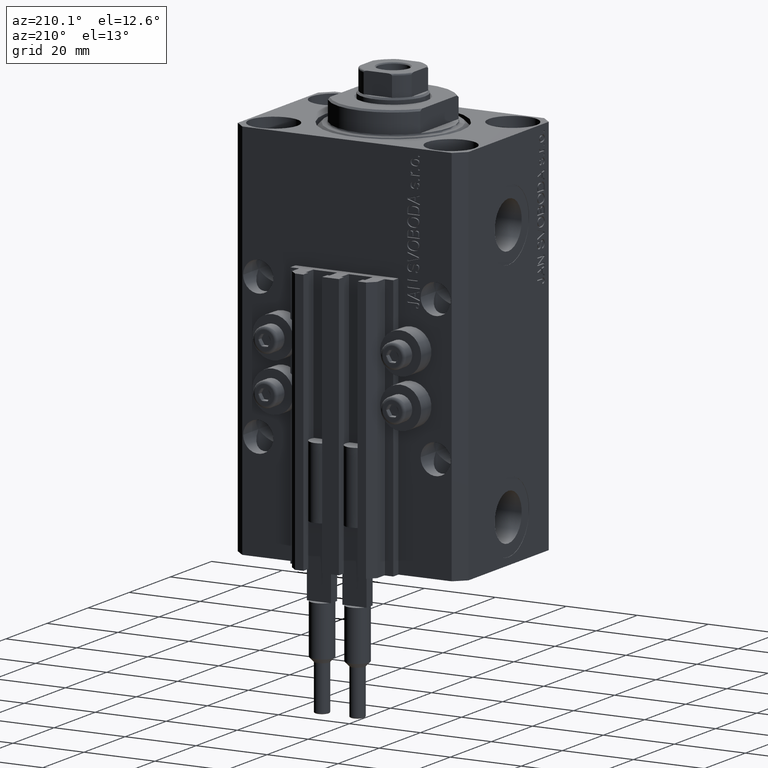
[diagram: clean part render]
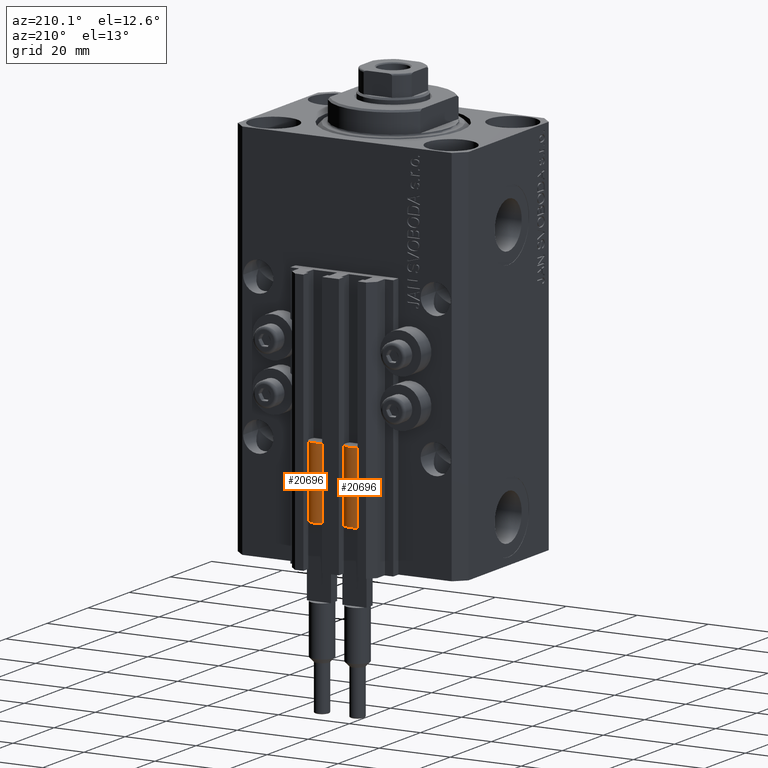
[diagram: same view with one multi-face feature highlighted, each face labeled with its STEP entity id]
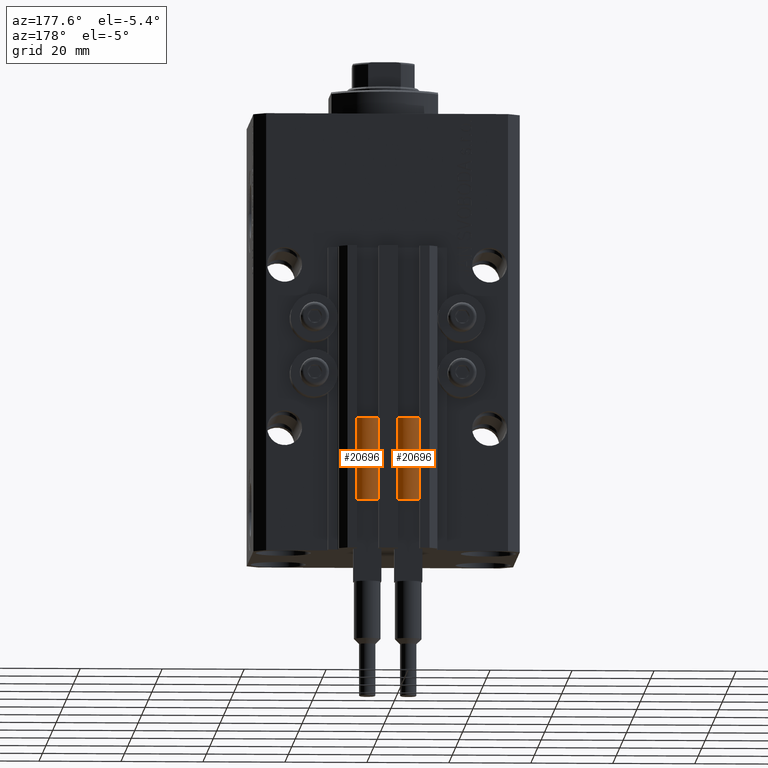
[diagram: same view with one multi-face feature highlighted, each face labeled with its STEP entity id]
A machine part, auxiliary view. The highlighted faces form ONE feature: a constant-radius fillet chain: 2 tangent blend faces with common blend radius 3.4 mm. The faces share edges in the B-rep.
A second angle (auxiliary view) of the same feature is appended — it is thin or edge-on in the first view.
Their STEP definitions:
[1] entity #20696 (Cylinder):
#90 = DIRECTION ( 'NONE',  ( 0.000000000000000000, 0.000000000000000000, 1.000000000000000000 ) ) ;
#978 = AXIS2_PLACEMENT_3D ( 'NONE', #14082, #25014, #17561 ) ;
#1305 = CARTESIAN_POINT ( 'NONE',  ( -3.051229260478471428, 1.500000000000000000, 20.00000000000000000 ) ) ;
#1424 = AXIS2_PLACEMENT_3D ( 'NONE', #14735, #90, #3823 ) ;
#2147 = AXIS2_PLACEMENT_3D ( 'NONE', #18891, #37273, #45670 ) ;
#2437 = CYLINDRICAL_SURFACE ( 'NONE', #978, 3.400000000000000355 ) ;
#2680 = FACE_OUTER_BOUND ( 'NONE', #48999, .T. ) ;
#3823 = DIRECTION ( 'NONE',  ( 1.000000000000000000, 0.000000000000000000, 0.000000000000000000 ) ) ;
#4488 = ORIENTED_EDGE ( 'NONE', *, *, #45321, .T. ) ;
#5127 = ORIENTED_EDGE ( 'NONE', *, *, #29783, .F. ) ;
#6089 = LINE ( 'NONE', #20733, #10544 ) ;
#6419 = VERTEX_POINT ( 'NONE', #1305 ) ;
#6814 = VERTEX_POINT ( 'NONE', #30254 ) ;
#6898 = CIRCLE ( 'NONE', #2147, 3.400000000000000355 ) ;
#10544 = VECTOR ( 'NONE', #31903, 1000.000000000000000 ) ;
#11632 = CARTESIAN_POINT ( 'NONE',  ( 3.400000000000000355, 4.163799117101001052E-16, 0.000000000000000000 ) ) ;
#12113 = CARTESIAN_POINT ( 'NONE',  ( 0.000000000000000000, 0.000000000000000000, 0.000000000000000000 ) ) ;
#12348 = DIRECTION ( 'NONE',  ( 0.000000000000000000, 0.000000000000000000, 1.000000000000000000 ) ) ;
#13965 = DIRECTION ( 'NONE',  ( 1.000000000000000000, 0.000000000000000000, 0.000000000000000000 ) ) ;
#14082 = CARTESIAN_POINT ( 'NONE',  ( 0.000000000000000000, 0.000000000000000000, 20.00000000000000000 ) ) ;
#14735 = CARTESIAN_POINT ( 'NONE',  ( 0.000000000000000000, 0.000000000000000000, 20.00000000000000000 ) ) ;
#16631 = EDGE_CURVE ( 'NONE', #30544, #39956, #31414, .T. ) ;
#17561 = DIRECTION ( 'NONE',  ( -1.000000000000000000, 0.000000000000000000, 0.000000000000000000 ) ) ;
#17593 = VECTOR ( 'NONE', #42576, 1000.000000000000000 ) ;
#17888 = AXIS2_PLACEMENT_3D ( 'NONE', #36798, #18665, #13965 ) ;
#18665 = DIRECTION ( 'NONE',  ( 0.000000000000000000, 0.000000000000000000, 1.000000000000000000 ) ) ;
#18891 = CARTESIAN_POINT ( 'NONE',  ( 0.000000000000000000, 0.000000000000000000, 20.00000000000000000 ) ) ;
#19611 = EDGE_CURVE ( 'NONE', #6814, #22906, #6089, .T. ) ;
#20696 = ADVANCED_FACE ( 'NONE', ( #2680 ), #2437, .T. ) ;
#20733 = CARTESIAN_POINT ( 'NONE',  ( 3.400000000000000355, 4.163799117101001052E-16, 20.00000000000000000 ) ) ;
#21043 = CARTESIAN_POINT ( 'NONE',  ( -3.400000000000000355, 0.000000000000000000, 0.000000000000000000 ) ) ;
#21397 = CARTESIAN_POINT ( 'NONE',  ( -3.400000000000000355, 0.000000000000000000, 20.00000000000000000 ) ) ;
#22330 = VERTEX_POINT ( 'NONE', #32480 ) ;
#22906 = VERTEX_POINT ( 'NONE', #11632 ) ;
#23186 = ORIENTED_EDGE ( 'NONE', *, *, #16631, .F. ) ;
#24241 = DIRECTION ( 'NONE',  ( 1.000000000000000000, 0.000000000000000000, 0.000000000000000000 ) ) ;
#24537 = AXIS2_PLACEMENT_3D ( 'NONE', #12113, #12348, #24241 ) ;
#24867 = ORIENTED_EDGE ( 'NONE', *, *, #37622, .F. ) ;
#25014 = DIRECTION ( 'NONE',  ( -0.000000000000000000, -0.000000000000000000, -1.000000000000000000 ) ) ;
#29783 = EDGE_CURVE ( 'NONE', #22330, #6419, #39265, .T. ) ;
#30254 = CARTESIAN_POINT ( 'NONE',  ( 3.400000000000000355, 0.000000000000000000, 20.00000000000000000 ) ) ;
#30544 = VERTEX_POINT ( 'NONE', #48202 ) ;
#31414 = LINE ( 'NONE', #21397, #17593 ) ;
#31903 = DIRECTION ( 'NONE',  ( -0.000000000000000000, -0.000000000000000000, -1.000000000000000000 ) ) ;
#32480 = CARTESIAN_POINT ( 'NONE',  ( 3.051229260478471428, 1.500000000000000000, 20.00000000000000000 ) ) ;
#36798 = CARTESIAN_POINT ( 'NONE',  ( 0.000000000000000000, 0.000000000000000000, 20.00000000000000000 ) ) ;
#37273 = DIRECTION ( 'NONE',  ( 0.000000000000000000, 0.000000000000000000, 1.000000000000000000 ) ) ;
#37622 = EDGE_CURVE ( 'NONE', #6419, #30544, #38649, .T. ) ;
#38649 = CIRCLE ( 'NONE', #1424, 3.400000000000000355 ) ;
#38771 = EDGE_CURVE ( 'NONE', #6814, #22330, #6898, .T. ) ;
#39265 = CIRCLE ( 'NONE', #17888, 3.400000000000000355 ) ;
#39571 = CIRCLE ( 'NONE', #24537, 3.400000000000000355 ) ;
#39956 = VERTEX_POINT ( 'NONE', #21043 ) ;
#42576 = DIRECTION ( 'NONE',  ( -0.000000000000000000, -0.000000000000000000, -1.000000000000000000 ) ) ;
#43634 = ORIENTED_EDGE ( 'NONE', *, *, #38771, .F. ) ;
#45321 = EDGE_CURVE ( 'NONE', #22906, #39956, #39571, .T. ) ;
#45670 = DIRECTION ( 'NONE',  ( 1.000000000000000000, 0.000000000000000000, 0.000000000000000000 ) ) ;
#47106 = ORIENTED_EDGE ( 'NONE', *, *, #19611, .T. ) ;
#48202 = CARTESIAN_POINT ( 'NONE',  ( -3.399999999999999467, -4.915049848600952119E-16, 20.00000000000000000 ) ) ;
#48999 = EDGE_LOOP ( 'NONE', ( #43634, #47106, #4488, #23186, #24867, #5127 ) ) ;
[2] entity #20696 (Cylinder):
#90 = DIRECTION ( 'NONE',  ( 0.000000000000000000, 0.000000000000000000, 1.000000000000000000 ) ) ;
#978 = AXIS2_PLACEMENT_3D ( 'NONE', #14082, #25014, #17561 ) ;
#1305 = CARTESIAN_POINT ( 'NONE',  ( -3.051229260478471428, 1.500000000000000000, 20.00000000000000000 ) ) ;
#1424 = AXIS2_PLACEMENT_3D ( 'NONE', #14735, #90, #3823 ) ;
#2147 = AXIS2_PLACEMENT_3D ( 'NONE', #18891, #37273, #45670 ) ;
#2437 = CYLINDRICAL_SURFACE ( 'NONE', #978, 3.400000000000000355 ) ;
#2680 = FACE_OUTER_BOUND ( 'NONE', #48999, .T. ) ;
#3823 = DIRECTION ( 'NONE',  ( 1.000000000000000000, 0.000000000000000000, 0.000000000000000000 ) ) ;
#4488 = ORIENTED_EDGE ( 'NONE', *, *, #45321, .T. ) ;
#5127 = ORIENTED_EDGE ( 'NONE', *, *, #29783, .F. ) ;
#6089 = LINE ( 'NONE', #20733, #10544 ) ;
#6419 = VERTEX_POINT ( 'NONE', #1305 ) ;
#6814 = VERTEX_POINT ( 'NONE', #30254 ) ;
#6898 = CIRCLE ( 'NONE', #2147, 3.400000000000000355 ) ;
#10544 = VECTOR ( 'NONE', #31903, 1000.000000000000000 ) ;
#11632 = CARTESIAN_POINT ( 'NONE',  ( 3.400000000000000355, 4.163799117101001052E-16, 0.000000000000000000 ) ) ;
#12113 = CARTESIAN_POINT ( 'NONE',  ( 0.000000000000000000, 0.000000000000000000, 0.000000000000000000 ) ) ;
#12348 = DIRECTION ( 'NONE',  ( 0.000000000000000000, 0.000000000000000000, 1.000000000000000000 ) ) ;
#13965 = DIRECTION ( 'NONE',  ( 1.000000000000000000, 0.000000000000000000, 0.000000000000000000 ) ) ;
#14082 = CARTESIAN_POINT ( 'NONE',  ( 0.000000000000000000, 0.000000000000000000, 20.00000000000000000 ) ) ;
#14735 = CARTESIAN_POINT ( 'NONE',  ( 0.000000000000000000, 0.000000000000000000, 20.00000000000000000 ) ) ;
#16631 = EDGE_CURVE ( 'NONE', #30544, #39956, #31414, .T. ) ;
#17561 = DIRECTION ( 'NONE',  ( -1.000000000000000000, 0.000000000000000000, 0.000000000000000000 ) ) ;
#17593 = VECTOR ( 'NONE', #42576, 1000.000000000000000 ) ;
#17888 = AXIS2_PLACEMENT_3D ( 'NONE', #36798, #18665, #13965 ) ;
#18665 = DIRECTION ( 'NONE',  ( 0.000000000000000000, 0.000000000000000000, 1.000000000000000000 ) ) ;
#18891 = CARTESIAN_POINT ( 'NONE',  ( 0.000000000000000000, 0.000000000000000000, 20.00000000000000000 ) ) ;
#19611 = EDGE_CURVE ( 'NONE', #6814, #22906, #6089, .T. ) ;
#20696 = ADVANCED_FACE ( 'NONE', ( #2680 ), #2437, .T. ) ;
#20733 = CARTESIAN_POINT ( 'NONE',  ( 3.400000000000000355, 4.163799117101001052E-16, 20.00000000000000000 ) ) ;
#21043 = CARTESIAN_POINT ( 'NONE',  ( -3.400000000000000355, 0.000000000000000000, 0.000000000000000000 ) ) ;
#21397 = CARTESIAN_POINT ( 'NONE',  ( -3.400000000000000355, 0.000000000000000000, 20.00000000000000000 ) ) ;
#22330 = VERTEX_POINT ( 'NONE', #32480 ) ;
#22906 = VERTEX_POINT ( 'NONE', #11632 ) ;
#23186 = ORIENTED_EDGE ( 'NONE', *, *, #16631, .F. ) ;
#24241 = DIRECTION ( 'NONE',  ( 1.000000000000000000, 0.000000000000000000, 0.000000000000000000 ) ) ;
#24537 = AXIS2_PLACEMENT_3D ( 'NONE', #12113, #12348, #24241 ) ;
#24867 = ORIENTED_EDGE ( 'NONE', *, *, #37622, .F. ) ;
#25014 = DIRECTION ( 'NONE',  ( -0.000000000000000000, -0.000000000000000000, -1.000000000000000000 ) ) ;
#29783 = EDGE_CURVE ( 'NONE', #22330, #6419, #39265, .T. ) ;
#30254 = CARTESIAN_POINT ( 'NONE',  ( 3.400000000000000355, 0.000000000000000000, 20.00000000000000000 ) ) ;
#30544 = VERTEX_POINT ( 'NONE', #48202 ) ;
#31414 = LINE ( 'NONE', #21397, #17593 ) ;
#31903 = DIRECTION ( 'NONE',  ( -0.000000000000000000, -0.000000000000000000, -1.000000000000000000 ) ) ;
#32480 = CARTESIAN_POINT ( 'NONE',  ( 3.051229260478471428, 1.500000000000000000, 20.00000000000000000 ) ) ;
#36798 = CARTESIAN_POINT ( 'NONE',  ( 0.000000000000000000, 0.000000000000000000, 20.00000000000000000 ) ) ;
#37273 = DIRECTION ( 'NONE',  ( 0.000000000000000000, 0.000000000000000000, 1.000000000000000000 ) ) ;
#37622 = EDGE_CURVE ( 'NONE', #6419, #30544, #38649, .T. ) ;
#38649 = CIRCLE ( 'NONE', #1424, 3.400000000000000355 ) ;
#38771 = EDGE_CURVE ( 'NONE', #6814, #22330, #6898, .T. ) ;
#39265 = CIRCLE ( 'NONE', #17888, 3.400000000000000355 ) ;
#39571 = CIRCLE ( 'NONE', #24537, 3.400000000000000355 ) ;
#39956 = VERTEX_POINT ( 'NONE', #21043 ) ;
#42576 = DIRECTION ( 'NONE',  ( -0.000000000000000000, -0.000000000000000000, -1.000000000000000000 ) ) ;
#43634 = ORIENTED_EDGE ( 'NONE', *, *, #38771, .F. ) ;
#45321 = EDGE_CURVE ( 'NONE', #22906, #39956, #39571, .T. ) ;
#45670 = DIRECTION ( 'NONE',  ( 1.000000000000000000, 0.000000000000000000, 0.000000000000000000 ) ) ;
#47106 = ORIENTED_EDGE ( 'NONE', *, *, #19611, .T. ) ;
#48202 = CARTESIAN_POINT ( 'NONE',  ( -3.399999999999999467, -4.915049848600952119E-16, 20.00000000000000000 ) ) ;
#48999 = EDGE_LOOP ( 'NONE', ( #43634, #47106, #4488, #23186, #24867, #5127 ) ) ;